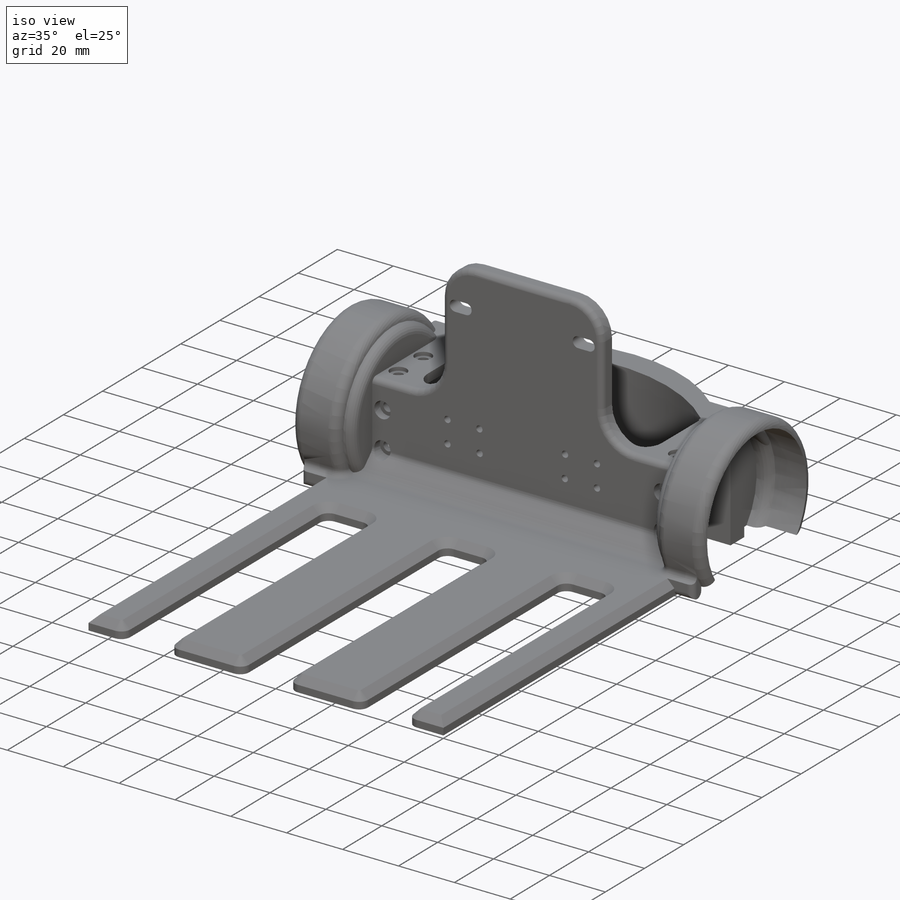
[diagram: iso view]
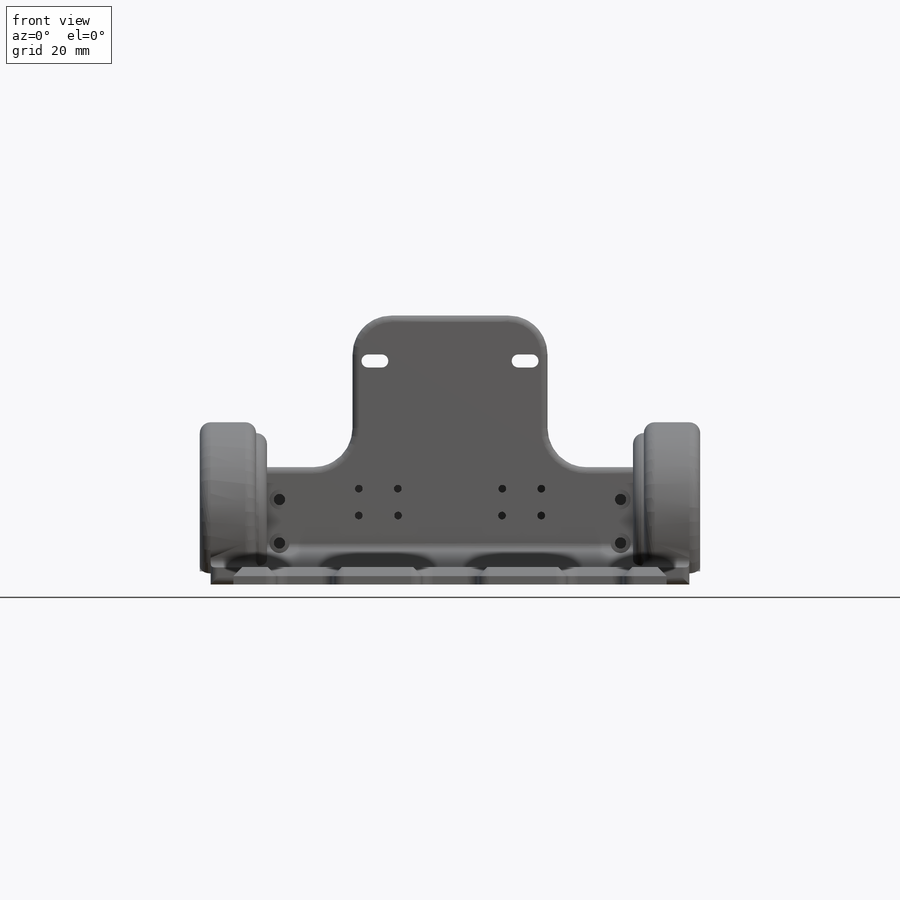
[diagram: front view]
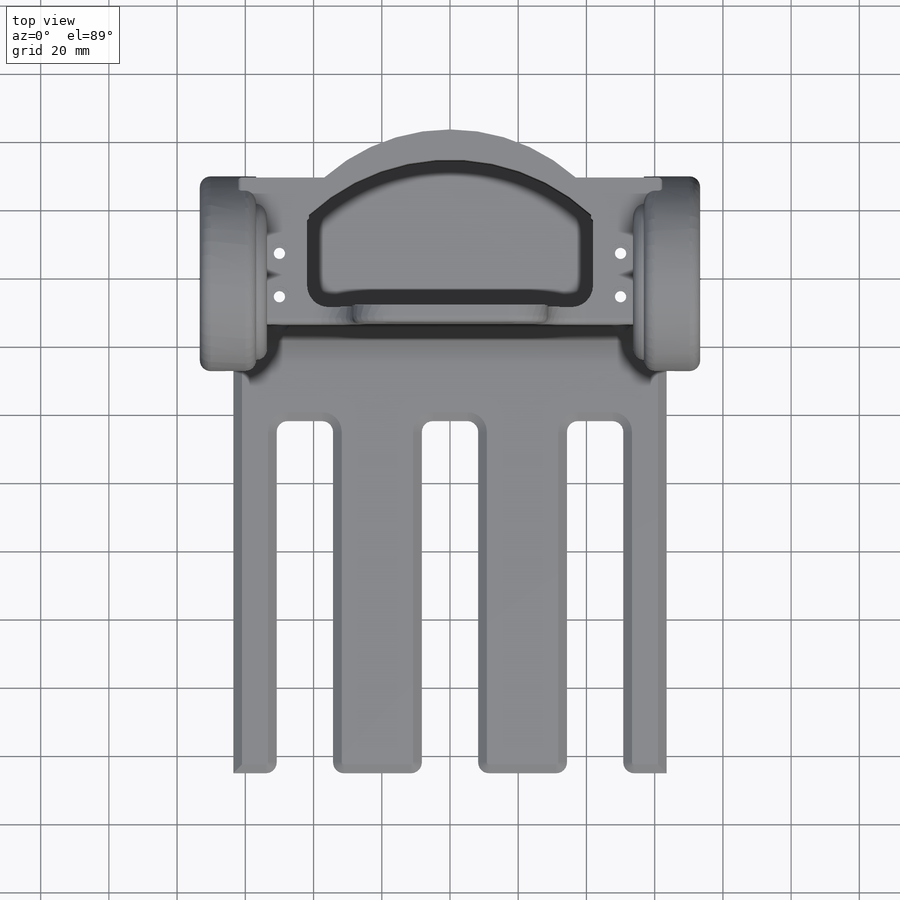
[diagram: top view]
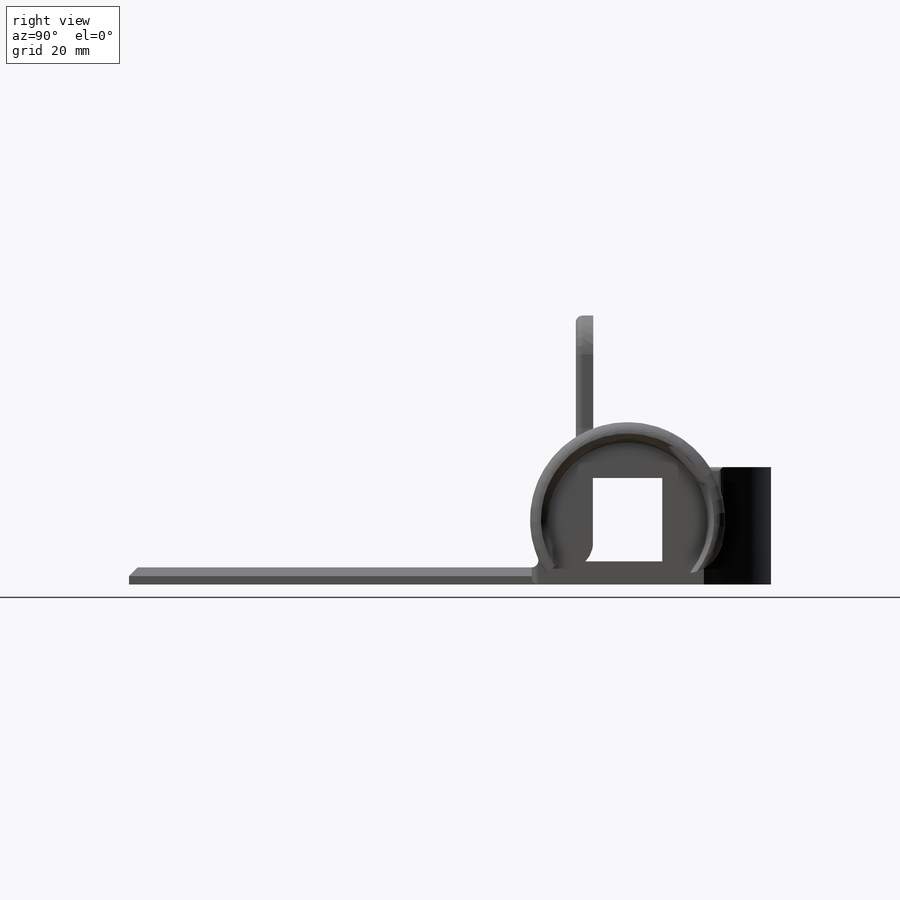
[diagram: right view]
SOLIDWORKS PART (.sldprt)
format: sldprt  version: not decoded by parser v0  size: 2,420,736 bytes
history: native  units: mm
features: sketch x104, sheet_metal_op x69, fillet x17, cut_extrude x13, extrude x13, mirror x6, hole x3, chamfer x2, material x1, boolean_combine x1, plane x1 + 68 further entries (+13 scaffold rows collapsed; 34 parser-record rows omitted)
feature tree (345):
  scaffold x13  (default folders/planes/origin — collapsed)
  material  "Material <not specified>"
  sketch  "Sketch1"  dims[c1.D1=127.0mm c1.D2=12.7mm c1.D3=25.4mm c1.D4=~8.980256mm c2.D1=6.35mm c2.D2=0.5 c2.D3=6.35mm c2.D6=500.0mm]
  sheet_metal_op  "Base-Flange1"
  sheet_metal_op  "BaseBend2"
  sketch  "Sketch10"  dims[D1=1.27mm D2=1.27mm D3=50.8mm D4=50.8mm]
  cut_extrude  "Cut-Extrude2"  [1 undecoded]
  fillet  "Fillet1"  Radius=7.62mm
  fillet  "Fillet2"  Radius=7.62mm
  sketch  "Sketch11"  dims[D1=16.51mm D2=19.05mm D3=8.255mm D4=16.51mm D5=12.7mm]
  cut_extrude  "Cut-Extrude3"  [1 undecoded]
  fillet  "Fillet3"  Radius=3.175mm
  hole  "CBORE for #4 Socket Head Cap Screw1"  Diameter=2.2606mm Depth=11.331628mm
  sketch  "Sketch12"  dims[D1=6.35mm D2=6.35mm D3=6.35mm D4=6.35mm D5=6.35mm D6=6.35mm D7=6.35mm D8=6.35mm D9=6.35mm D10=6.35mm D11=6.35mm D12=6.35mm]
  sketch  "Sketch13"  dims[Thru Hole Dia.=2.2606mm Thru Hole Depth=~11.331628mm C'Bore Dia.=~5.55752mm C'Bore Depth=2.8448mm]
  sketch  "Sketch14"  dims[D1=3.175mm]
  extrude  "Boss-Extrude1"  Depth=38.1mm
  fillet  "Fillet4"  Radius=3.81mm
  sketch  "Sketch16"
  extrude  "Boss-Extrude3"  [1 undecoded]
  sketch  "Sketch15"  dims[D1=26.162mm D2=20.32mm]
  cut_extrude  "Cut-Extrude5"  Depth=5.334mm
  mirror  "Mirror1"
  sketch  "Sketch18"  dims[D1=20.574mm]
  extrude  "Boss-Extrude4"  Depth=6.35mm
  sketch  "Sketch19"
  extrude  "Boss-Extrude5"  [1 undecoded]
  mirror  "Mirror2"
  fillet  "Fillet5"  Radius=1.27mm
  sketch  "Sketch20"  dims[c1.D4=6.35mm c1.D1=19.05mm c1.D2=19.05mm c1.D3=5.08mm c2.D4=6.35mm c2.D3=5.08mm]
  cut_extrude  "Cut-Extrude6"  Depth=13.462mm
  sketch  "Sketch23"  dims[D1=5.08mm D2=5.08mm]
  extrude  "Boss-Extrude7"  [1 undecoded]
  sketch  "Sketch24"
  extrude  "Boss-Extrude8"  [1 undecoded]
  sketch  "Sketch25"  dims[D1=44.45mm D2=57.15mm D3=28.575mm]
  extrude  "Boss-Extrude9"  [1 undecoded]
  sketch  "Sketch22"  dims[D2=~60.841649mm D1=26.59mm]
  cut_extrude  "Cut-Extrude8"  [1 undecoded]
  fillet  "Fillet7"  Radius=11.43mm
  sketch  "Sketch26"
  cut_extrude  "Cut-Extrude10"  [1 undecoded]
  sketch  "Sketch35"  dims[c1.D1=3.81mm c1.D2=~11.521697mm c1.D3=~13.540848mm c1.D4=15.56mm c1.D5=55.56mm c1.D6=~57.579152mm c1.D7=~59.598303mm c2.D2=~11.521697mm c2.D3=~13.540848mm c2.D4=~34.306233mm c2.D1=7.62mm]
  hole  "CBORE for #4 Socket Head Cap Screw4"  Diameter=3.302mm Depth=5.08mm
  sketch  "Sketch42"
  sketch  "Sketch43"  dims[Hole Dia.=3.302mm Hole Depth=5.08mm C'Bore Dia.=5.842mm C'Bore Depth=2.8448mm Drill Angle=118.0deg]
  hole  "CBORE for #4 Socket Head Cap Screw5"  Diameter=3.302mm Depth=5.08mm
  sketch  "Sketch44"
  sketch  "Sketch45"  dims[Hole Dia.=3.302mm Hole Depth=5.08mm C'Bore Dia.=5.842mm C'Bore Depth=1.27mm Drill Angle=118.0deg]
  sketch  "Sketch47"  dims[D1=46.99mm]
  cut_extrude  "Cut-Extrude11"  Depth=5.3975mm
  sketch  "Sketch48"  dims[D1=50.8mm D2=57.15mm]
  extrude  "Boss-Extrude10"  Depth=16.51mm
  sketch  "Sketch50"
  extrude  "Boss-Extrude11"  Depth=3.175mm
  sketch  "Sketch51"  dims[D1=0.0mm]
  cut_extrude  "Cut-Extrude12"  Depth=66.548mm
  fillet  "Fillet8"  Radius=10.16mm
  sketch  "Sketch52"
  cut_extrude  "Cut-Extrude14"  Depth=28.956mm
  fillet  "Fillet9"  Radius=10.795mm
  fillet  "Fillet10"  Radius=3.175mm
  fillet  "Fillet11"  Radius=1.905mm
  fillet  "Fillet12"  Radius=3.175mm
  fillet  "Fillet13"  Radius=3.175mm
  sketch  "Sketch54"
  extrude  "Boss-Extrude13"  Depth=4.191mm
  chamfer  "Chamfer1"  Distance=2.54mm Angle=45deg
  fillet  "Fillet16"  Radius=10.16mm
  fillet  "Fillet17"  Radius=5.08mm
  fillet  "Fillet18"  Radius=2.032mm
  sketch  "Sketch61"
  cut_extrude  "Cut-Extrude18"  Depth=15.621mm
  sketch  "Sketch62"
  extrude  "Boss-Extrude14"  [1 undecoded]
  fillet  "Fillet20"  Radius=2.032mm
  fillet  "Fillet21"  Radius=2.032mm
  sketch  "Sketch63"
  cut_extrude  "Cut-Extrude19"  Depth=172.72mm
  sketch  "Sketch64"  dims[D1=~59.912492mm D2=0.762mm]
  extrude  "Boss-Extrude15"  [1 undecoded]
  sketch  "Sketch66"
  cut_extrude  "Cut-Extrude20"  Depth=22.098mm
  sketch  "Sketch67"
  cut_extrude  "Cut-Extrude21"  Depth=11.176mm
  chamfer  "Chamfer2"  Distance=2.54mm Angle=45deg
  mirror  "Mirror9"
  mirror  "DerivedBend2"
  boolean_combine  "Combine1"
  mirror  "DerivedBend3"
  mirror  "DerivedBend4"
  plane  "Plane1"
  sketch  "Sketch71"
  extrude  "Boss-Extrude17"  [1 undecoded]
  sketch  "Bend-Lines1"
  sketch  "Bounding-Box1"
  sheet_metal_op  "Sheet-Metal1"
  "Flat-Pattern1"
  sketch  "Bend-Lines2"
  sketch  "Bounding-Box2"
  "Flatten-<BaseBend2>1"
  parser-record x34  (decoder bookkeeping rows leaked as tree rows — omitted from the tree; the rows remain in map.json)
  sheet_metal_op  "Sheet-Metal3"
  sheet_metal_op  "Flat-Pattern1"
  sketch  "Bend-Lines2"
  sketch  "Bounding-Box2"
  "Flatten-<BaseBend1>1"
  "Flatten-<BaseBend2>1"
  sheet_metal_op  "Sheet-Metal4"
  sheet_metal_op  "Flat-Pattern1"
  sketch  "Bend-Lines2"
  sketch  "Bounding-Box2"
  "Flatten-<BaseBend1>1"
  "Flatten-<BaseBend2>1"
  sheet_metal_op  "Sheet-Metal5"
  sheet_metal_op  "Flat-Pattern1"
  sketch  "Bend-Lines2"
  sketch  "Bounding-Box2"
  "Flatten-<BaseBend1>1"
  "Flatten-<BaseBend2>1"
  sheet_metal_op  "Sheet-Metal6"
  sheet_metal_op  "Flat-Pattern1"
  sketch  "Bend-Lines2"
  sketch  "Bounding-Box2"
  "Flatten-<BaseBend1>1"
  "Flatten-<BaseBend2>1"
  sheet_metal_op  "Sheet-Metal7"
  sheet_metal_op  "Flat-Pattern1"
  sketch  "Bend-Lines2"
  sketch  "Bounding-Box2"
  "Flatten-<BaseBend1>1"
  "Flatten-<BaseBend2>1"
  sheet_metal_op  "Sheet-Metal8"
  sheet_metal_op  "Flat-Pattern1"
  sketch  "Bend-Lines2"
  sketch  "Bounding-Box2"
  "Flatten-<BaseBend1>1"
  "Flatten-<BaseBend2>1"
  sheet_metal_op  "Sheet-Metal10"
  sheet_metal_op  "Flat-Pattern1"
  sketch  "Bend-Lines2"
  sketch  "Bounding-Box2"
  "Flatten-<BaseBend1>1"
  "Flatten-<BaseBend2>1"
  sheet_metal_op  "Sheet-Metal11"
  sheet_metal_op  "Flat-Pattern1"
  sketch  "Bend-Lines2"
  sketch  "Bounding-Box2"
  "Flatten-<BaseBend1>1"
  "Flatten-<BaseBend2>1"
  sheet_metal_op  "Sheet-Metal12"
  sheet_metal_op  "Flat-Pattern1"
  sketch  "Bend-Lines2"
  sketch  "Bounding-Box2"
  "Flatten-<BaseBend1>1"
  "Flatten-<BaseBend2>1"
  sheet_metal_op  "Sheet-Metal13"
  sheet_metal_op  "Flat-Pattern1"
  sketch  "Bend-Lines2"
  sketch  "Bounding-Box2"
  "Flatten-<BaseBend1>1"
  "Flatten-<BaseBend2>1"
  sheet_metal_op  "Sheet-Metal14"
  sheet_metal_op  "Flat-Pattern1"
  sketch  "Bend-Lines2"
  sketch  "Bounding-Box2"
  "Flatten-<BaseBend1>1"
  "Flatten-<BaseBend2>1"
  sheet_metal_op  "Sheet-Metal16"
  sheet_metal_op  "Flat-Pattern1"
  sketch  "Bend-Lines2"
  sketch  "Bounding-Box2"
  "Flatten-<BaseBend1>1"
  "Flatten-<BaseBend2>1"
  sheet_metal_op  "Sheet-Metal17"
  sheet_metal_op  "Flat-Pattern1"
  sketch  "Bend-Lines2"
  sketch  "Bounding-Box2"
  "Flatten-<BaseBend1>1"
  "Flatten-<BaseBend2>1"
  sheet_metal_op  "Sheet-Metal18"
  sheet_metal_op  "Flat-Pattern1"
  sketch  "Bend-Lines2"
  sketch  "Bounding-Box2"
  "Flatten-<BaseBend1>1"
  "Flatten-<BaseBend2>1"
  sheet_metal_op  "Sheet-Metal19"
  sheet_metal_op  "Flat-Pattern1"
  sketch  "Bend-Lines2"
  sketch  "Bounding-Box2"
  "Flatten-<BaseBend1>1"
  "Flatten-<BaseBend2>1"
  sheet_metal_op  "Sheet-Metal27"
  sheet_metal_op  "Flat-Pattern1"
  sketch  "Bend-Lines2"
  sketch  "Bounding-Box2"
  "Flatten-<BaseBend1>1"
  "Flatten-<BaseBend2>1"
  sheet_metal_op  "Sheet-Metal31"
  sheet_metal_op  "Flat-Pattern1"
  sketch  "Bend-Lines2"
  sketch  "Bounding-Box2"
  "Flatten-<BaseBend1>1"
  "Flatten-<BaseBend2>1"
  sheet_metal_op  "Sheet-Metal32"
  sheet_metal_op  "Flat-Pattern1"
  sketch  "Bend-Lines2"
  sketch  "Bounding-Box2"
  "Flatten-<BaseBend1>1"
  "Flatten-<BaseBend2>1"
  sheet_metal_op  "Sheet-Metal33"
  sheet_metal_op  "Flat-Pattern1"
  sketch  "Bend-Lines2"
  sketch  "Bounding-Box2"
  "Flatten-<BaseBend1>1"
  "Flatten-<BaseBend2>1"
  sheet_metal_op  "Sheet-Metal34"
  sheet_metal_op  "Flat-Pattern1"
  sketch  "Bend-Lines2"
  sketch  "Bounding-Box2"
  "Flatten-<BaseBend1>1"
  "Flatten-<BaseBend2>1"
  sheet_metal_op  "Sheet-Metal35"
  sheet_metal_op  "Flat-Pattern1"
  sketch  "Bend-Lines2"
  sketch  "Bounding-Box2"
  "Flatten-<BaseBend1>1"
  "Flatten-<BaseBend2>1"
  sheet_metal_op  "Sheet-Metal36"
  sheet_metal_op  "Flat-Pattern1"
  sketch  "Bend-Lines2"
  sketch  "Bounding-Box2"
  "Flatten-<BaseBend1>1"
  "Flatten-<BaseBend2>1"
  sheet_metal_op  "Sheet-Metal38"
  sheet_metal_op  "Flat-Pattern1"
  sketch  "Bend-Lines2"
  sketch  "Bounding-Box2"
  "Flatten-<BaseBend1>1"
  "Flatten-<BaseBend2>1"
  sheet_metal_op  "Sheet-Metal39"
  sheet_metal_op  "Flat-Pattern1"
  sketch  "Bend-Lines2"
  sketch  "Bounding-Box2"
  "Flatten-<BaseBend1>1"
  "Flatten-<BaseBend2>1"
  sheet_metal_op  "Sheet-Metal43"
  sheet_metal_op  "Flat-Pattern1"
  sketch  "Bend-Lines2"
  sketch  "Bounding-Box2"
  "Flatten-<BaseBend1>1"
  "Flatten-<BaseBend2>1"
  sheet_metal_op  "Sheet-Metal44"
  sheet_metal_op  "Flat-Pattern1"
  sketch  "Bend-Lines2"
  sketch  "Bounding-Box2"
  "Flatten-<BaseBend1>1"
  "Flatten-<BaseBend2>1"
  sheet_metal_op  "Sheet-Metal46"
  sheet_metal_op  "Flat-Pattern1"
  sketch  "Bend-Lines2"
  sketch  "Bounding-Box2"
  "Flatten-<BaseBend1>1"
  "Flatten-<BaseBend2>1"
  sheet_metal_op  "Sheet-Metal47"
  sheet_metal_op  "Flat-Pattern47"
  sketch  "Bend-Lines3"
  sketch  "Bounding-Box3"
  "Flatten-<DerivedBend1>1"
  "Flatten-<DerivedBend2>1"
  sheet_metal_op  "Sheet-Metal49"
  sheet_metal_op  "Flat-Pattern49"
  sketch  "Bend-Lines4"
  sketch  "Bounding-Box4"
  "Flatten-<DerivedBend3>1"
  "Flatten-<DerivedBend4>1"
  sheet_metal_op  "Sheet-Metal50"
  sheet_metal_op  "Flat-Pattern1"
  sketch  "Bend-Lines2"
  sketch  "Bounding-Box2"
  "Flatten-<BaseBend1>1"
  "Flatten-<BaseBend2>1"
  sheet_metal_op  "Sheet-Metal51"
  sheet_metal_op  "Flat-Pattern1"
  sketch  "Bend-Lines2"
  sketch  "Bounding-Box2"
  "Flatten-<BaseBend1>1"
  "Flatten-<BaseBend2>1"
  sheet_metal_op  "Sheet-Metal52"
  sheet_metal_op  "Flat-Pattern1"
  sketch  "Bend-Lines2"
  sketch  "Bounding-Box2"
  "Flatten-<BaseBend1>1"
  "Flatten-<BaseBend2>1"
  sheet_metal_op  "Sheet-Metal54"
  sheet_metal_op  "Flat-Pattern49"
  sketch  "Bend-Lines4"
  sketch  "Bounding-Box4"
  "Flatten-<DerivedBend3>1"
  "Flatten-<DerivedBend4>1"
decode coverage: 55 of 228 modeling features carry decoded parameters; 68 rows unclassified (native names shown)
note: ~ marks probable driven/reference dimensions
note: 12 parameter values undecoded
summary: no parameter record found for 12 features
note: suppression state not decoded; provenance and decode notes live in map.json
